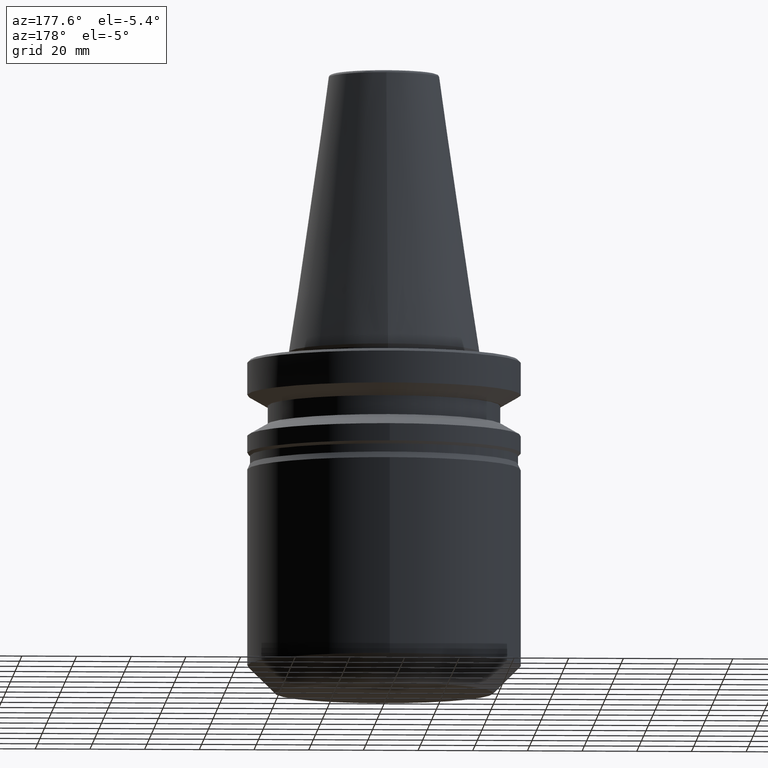
[diagram: clean part render]
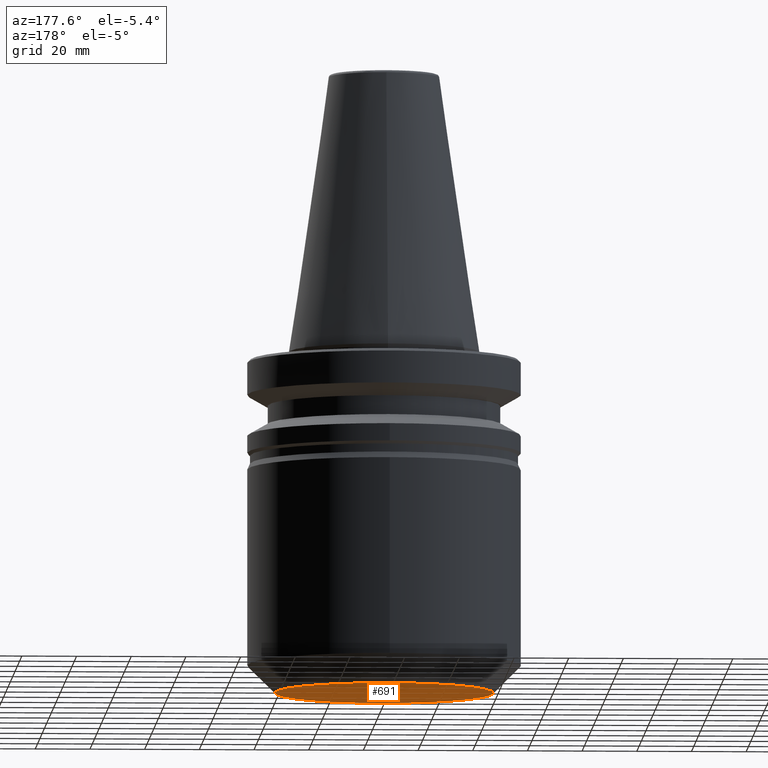
[diagram: same view with one face highlighted and labeled with its STEP entity id]
A machine part, auxiliary view. The second image highlights one B-rep face of the part: STEP entity #691.
In plain terms, the highlighted planar face has unit normal (0, 0, -1).
Its self-contained STEP definition (entity closure, byte-faithful):
#25 = AXIS2_PLACEMENT_3D ( 'NONE', #182, #179, #178 ) ;
#75 = ORIENTED_EDGE ( 'NONE', *, *, #556, .F. ) ;
#94 = AXIS2_PLACEMENT_3D ( 'NONE', #743, #741, #739 ) ;
#178 = DIRECTION ( 'NONE',  ( 1.000000000000000000, 0.0000000000000000000, 0.0000000000000000000 ) ) ;
#179 = DIRECTION ( 'NONE',  ( 0.0000000000000000000, 0.0000000000000000000, 1.000000000000000000 ) ) ;
#182 = CARTESIAN_POINT ( 'NONE',  ( 0.0000000000000000000, 0.0000000000000000000, -125.0000000000000000 ) ) ;
#380 = CARTESIAN_POINT ( 'NONE',  ( 40.00000000000000000, 0.0000000000000000000, -125.0000000000000000 ) ) ;
#496 = VERTEX_POINT ( 'NONE', #788 ) ;
#556 = EDGE_CURVE ( 'NONE', #496, #945, #1030, .T. ) ;
#616 = DIRECTION ( 'NONE',  ( -1.000000000000000000, 0.0000000000000000000, -0.0000000000000000000 ) ) ;
#618 = DIRECTION ( 'NONE',  ( 0.0000000000000000000, 0.0000000000000000000, -1.000000000000000000 ) ) ;
#622 = PLANE ( 'NONE',  #1025 ) ;
#634 = CARTESIAN_POINT ( 'NONE',  ( 40.47999999999999700, -40.47999999999999700, -125.0000000000000000 ) ) ;
#691 = ADVANCED_FACE ( 'NONE', ( #1274 ), #622, .T. ) ;
#739 = DIRECTION ( 'NONE',  ( 1.000000000000000000, 0.0000000000000000000, 0.0000000000000000000 ) ) ;
#741 = DIRECTION ( 'NONE',  ( 0.0000000000000000000, 0.0000000000000000000, 1.000000000000000000 ) ) ;
#743 = CARTESIAN_POINT ( 'NONE',  ( 0.0000000000000000000, 0.0000000000000000000, -125.0000000000000000 ) ) ;
#788 = CARTESIAN_POINT ( 'NONE',  ( -40.00000000000000000, 5.510910596163090300E-015, -125.0000000000000000 ) ) ;
#871 = ORIENTED_EDGE ( 'NONE', *, *, #1166, .F. ) ;
#945 = VERTEX_POINT ( 'NONE', #380 ) ;
#1025 = AXIS2_PLACEMENT_3D ( 'NONE', #634, #618, #616 ) ;
#1030 = CIRCLE ( 'NONE', #94, 40.00000000000000000 ) ;
#1166 = EDGE_CURVE ( 'NONE', #945, #496, #1280, .T. ) ;
#1274 = FACE_OUTER_BOUND ( 'NONE', #1285, .T. ) ;
#1280 = CIRCLE ( 'NONE', #25, 40.00000000000000000 ) ;
#1285 = EDGE_LOOP ( 'NONE', ( #871, #75 ) ) ;